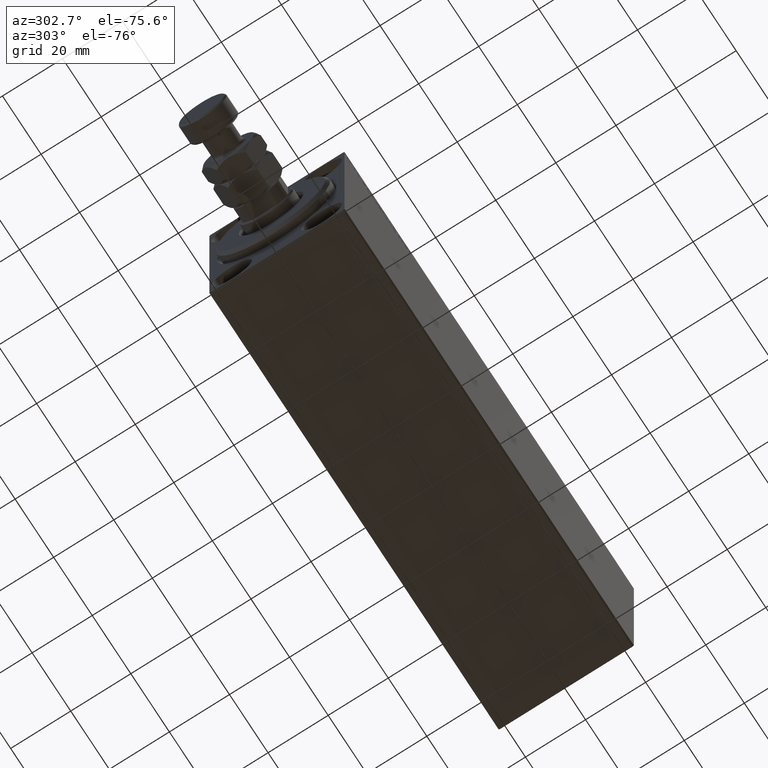
[diagram: clean part render]
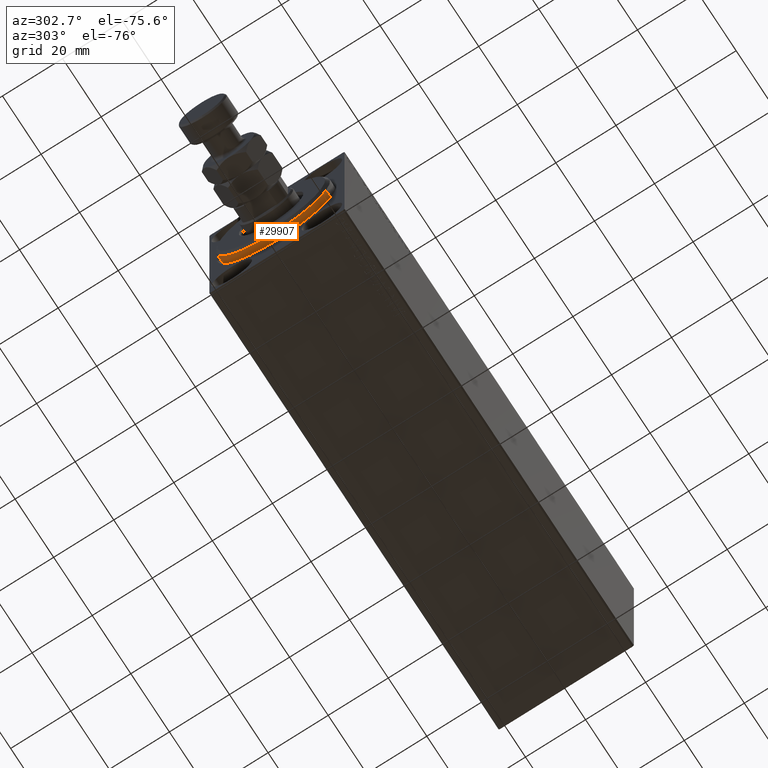
[diagram: same view with one face highlighted and labeled with its STEP entity id]
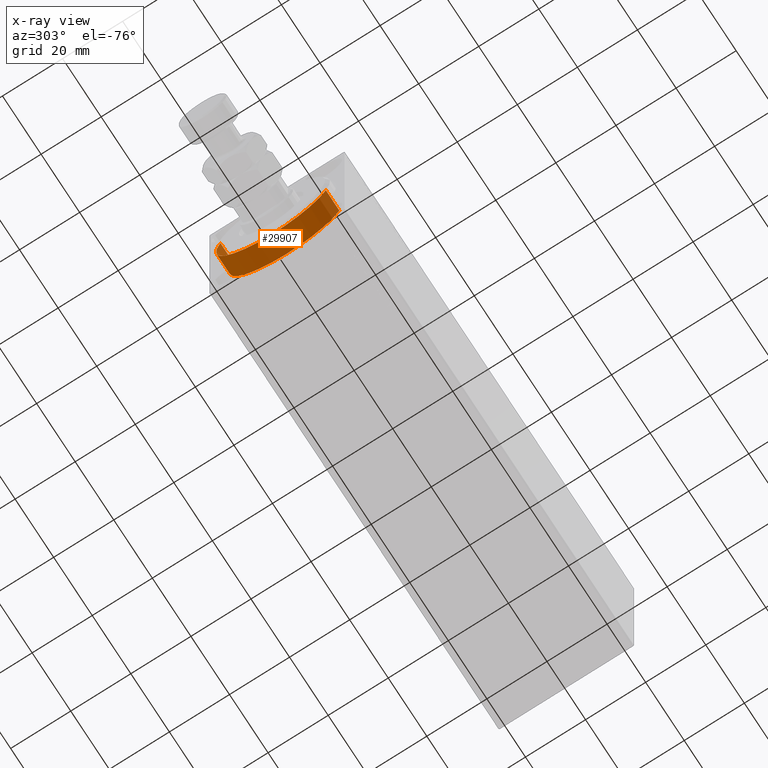
[diagram: x-ray of the same camera — body ghosted, the highlighted face saturated]
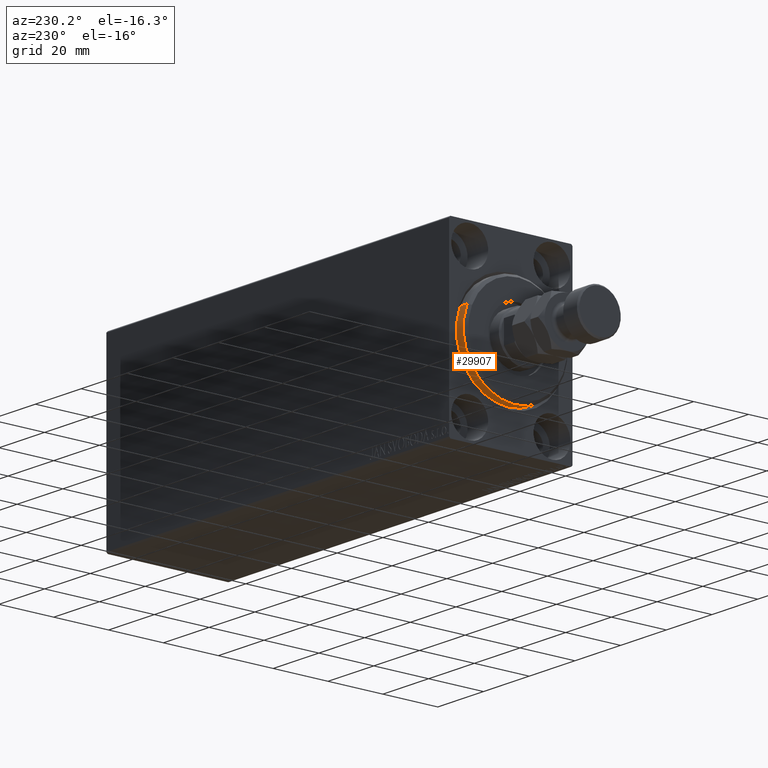
[diagram: same view with one face highlighted and labeled with its STEP entity id]
A machine part, auxiliary view. The second image highlights one B-rep face of the part: STEP entity #29907.
The next image is the same camera in x-ray: the body ghosted, the highlighted face saturated — about 0% of this face is hidden behind the body in this view.
A second angle (auxiliary view) of the same face is appended — the face is thin or edge-on in the first view.
In plain terms, the highlighted cylindrical surface (partial cylindrical patch) has radius 19 mm, axis along (1, 0, 0).
Its self-contained STEP definition (entity closure, byte-faithful):
#251 = FACE_OUTER_BOUND ( 'NONE', #38611, .T. ) ;
#958 = ORIENTED_EDGE ( 'NONE', *, *, #43105, .F. ) ;
#2263 = EDGE_CURVE ( 'NONE', #14291, #39923, #4885, .T. ) ;
#2350 = CARTESIAN_POINT ( 'NONE',  ( 3.000000000000000000, 2.326828918379970970E-15, -19.00000000000000000 ) ) ;
#3257 = VECTOR ( 'NONE', #40735, 1000.000000000000000 ) ;
#3690 = CYLINDRICAL_SURFACE ( 'NONE', #11293, 19.00000000000000000 ) ;
#3888 = VERTEX_POINT ( 'NONE', #5293 ) ;
#4885 = CIRCLE ( 'NONE', #10026, 19.00000000000000000 ) ;
#5293 = CARTESIAN_POINT ( 'NONE',  ( -5.000000000000000000, 0.000000000000000000, 19.00000000000000000 ) ) ;
#5342 = LINE ( 'NONE', #2350, #3257 ) ;
#8230 = LINE ( 'NONE', #36950, #15362 ) ;
#10026 = AXIS2_PLACEMENT_3D ( 'NONE', #30821, #13351, #17460 ) ;
#10500 = EDGE_CURVE ( 'NONE', #14291, #3888, #8230, .T. ) ;
#11293 = AXIS2_PLACEMENT_3D ( 'NONE', #42300, #38624, #21380 ) ;
#13351 = DIRECTION ( 'NONE',  ( -1.000000000000000000, 0.000000000000000000, 0.000000000000000000 ) ) ;
#14291 = VERTEX_POINT ( 'NONE', #23215 ) ;
#15362 = VECTOR ( 'NONE', #16485, 1000.000000000000000 ) ;
#16485 = DIRECTION ( 'NONE',  ( -1.000000000000000000, -0.000000000000000000, -0.000000000000000000 ) ) ;
#17460 = DIRECTION ( 'NONE',  ( 0.000000000000000000, 0.000000000000000000, -1.000000000000000000 ) ) ;
#20585 = CIRCLE ( 'NONE', #36736, 19.00000000000000000 ) ;
#21380 = DIRECTION ( 'NONE',  ( 0.000000000000000000, 0.000000000000000000, 1.000000000000000000 ) ) ;
#22220 = ORIENTED_EDGE ( 'NONE', *, *, #2263, .T. ) ;
#23215 = CARTESIAN_POINT ( 'NONE',  ( 1.999999999999992228, 0.000000000000000000, 19.00000000000000000 ) ) ;
#23302 = DIRECTION ( 'NONE',  ( -1.000000000000000000, 0.000000000000000000, 0.000000000000000000 ) ) ;
#26756 = DIRECTION ( 'NONE',  ( 0.000000000000000000, 0.000000000000000000, 1.000000000000000000 ) ) ;
#28967 = CARTESIAN_POINT ( 'NONE',  ( -5.000000000000000000, 2.326828918379970970E-15, -19.00000000000000000 ) ) ;
#29063 = ORIENTED_EDGE ( 'NONE', *, *, #10500, .F. ) ;
#29907 = ADVANCED_FACE ( 'NONE', ( #251 ), #3690, .T. ) ;
#30503 = CARTESIAN_POINT ( 'NONE',  ( 1.999999999999992228, 2.326828918379970970E-15, -19.00000000000000000 ) ) ;
#30589 = EDGE_CURVE ( 'NONE', #39923, #39253, #5342, .T. ) ;
#30803 = ORIENTED_EDGE ( 'NONE', *, *, #30589, .T. ) ;
#30821 = CARTESIAN_POINT ( 'NONE',  ( 1.999999999999992228, 0.000000000000000000, 0.000000000000000000 ) ) ;
#36736 = AXIS2_PLACEMENT_3D ( 'NONE', #40303, #23302, #26756 ) ;
#36950 = CARTESIAN_POINT ( 'NONE',  ( 3.000000000000000000, 0.000000000000000000, 19.00000000000000000 ) ) ;
#38611 = EDGE_LOOP ( 'NONE', ( #22220, #30803, #958, #29063 ) ) ;
#38624 = DIRECTION ( 'NONE',  ( -1.000000000000000000, -0.000000000000000000, -0.000000000000000000 ) ) ;
#39253 = VERTEX_POINT ( 'NONE', #28967 ) ;
#39923 = VERTEX_POINT ( 'NONE', #30503 ) ;
#40303 = CARTESIAN_POINT ( 'NONE',  ( -5.000000000000000000, 0.000000000000000000, 0.000000000000000000 ) ) ;
#40735 = DIRECTION ( 'NONE',  ( -1.000000000000000000, -0.000000000000000000, -0.000000000000000000 ) ) ;
#42300 = CARTESIAN_POINT ( 'NONE',  ( 3.000000000000000000, 0.000000000000000000, 0.000000000000000000 ) ) ;
#43105 = EDGE_CURVE ( 'NONE', #3888, #39253, #20585, .T. ) ;